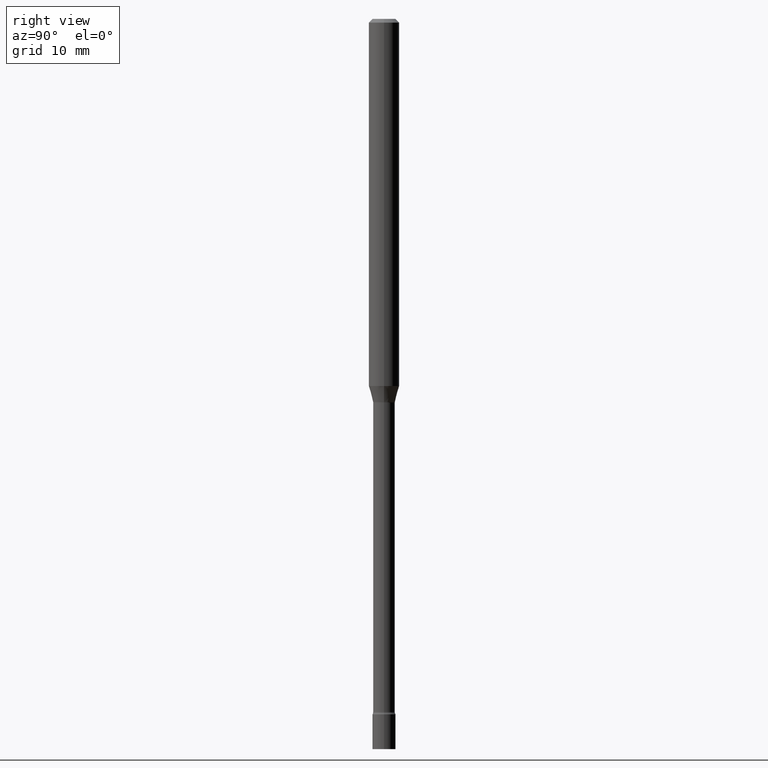
[diagram: clean part render]
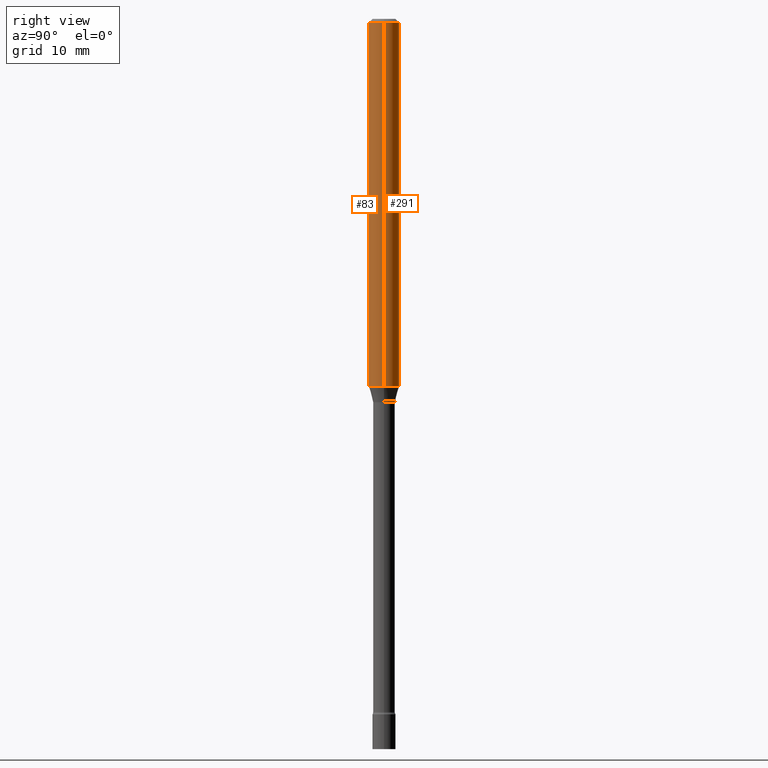
[diagram: same view with one multi-face feature highlighted, each face labeled with its STEP entity id]
A machine part, right view. The highlighted faces form ONE feature: a constant-radius fillet chain: 2 tangent blend faces with common blend radius 1.5875 mm. The faces share edges in the B-rep.
Their STEP definitions:
[1] entity #291 (Cylinder):
#24 = ORIENTED_EDGE ( 'NONE', *, *, #156, .T. ) ;
#30 = AXIS2_PLACEMENT_3D ( 'NONE', #58, #46, #365 ) ;
#44 = CARTESIAN_POINT ( 'NONE',  ( -0.06250000000000000000, -4.822401513186087072E-15, -1.508382893084896148 ) ) ;
#46 = DIRECTION ( 'NONE',  ( -2.445468806185136597E-29, 3.491481338843145583E-15, 1.000000000000000000 ) ) ;
#47 = VERTEX_POINT ( 'NONE', #165 ) ;
#58 = CARTESIAN_POINT ( 'NONE',  ( 3.688703312822403252E-29, -5.266490723036150477E-15, -1.508382893084896148 ) ) ;
#73 = CARTESIAN_POINT ( 'NONE',  ( 3.668203209277712094E-31, -5.237222008264728876E-17, -0.01500000000000003067 ) ) ;
#94 = EDGE_LOOP ( 'NONE', ( #351, #24, #114, #393 ) ) ;
#112 = VERTEX_POINT ( 'NONE', #44 ) ;
#114 = ORIENTED_EDGE ( 'NONE', *, *, #406, .F. ) ;
#145 = CARTESIAN_POINT ( 'NONE',  ( 0.06250000000000000000, -4.888073874380389458E-16, -0.01500000000000003067 ) ) ;
#156 = EDGE_CURVE ( 'NONE', #112, #299, #448, .T. ) ;
#165 = CARTESIAN_POINT ( 'NONE',  ( 0.06250000000000000000, -5.702925890391542147E-15, -1.508382893084896148 ) ) ;
#168 = FACE_OUTER_BOUND ( 'NONE', #94, .T. ) ;
#199 = EDGE_CURVE ( 'NONE', #47, #112, #349, .T. ) ;
#209 = EDGE_CURVE ( 'NONE', #47, #408, #456, .T. ) ;
#218 = DIRECTION ( 'NONE',  ( -2.445468806185136597E-29, 3.491481338843145583E-15, 1.000000000000000000 ) ) ;
#232 = VECTOR ( 'NONE', #411, 39.37007874015748143 ) ;
#290 = CARTESIAN_POINT ( 'NONE',  ( -0.06250000000000000000, 4.440892098500626162E-16, -3.074334431409316114E-30 ) ) ;
#291 = ADVANCED_FACE ( 'NONE', ( #168 ), #341, .T. ) ;
#299 = VERTEX_POINT ( 'NONE', #369 ) ;
#303 = DIRECTION ( 'NONE',  ( 1.000000000000000000, -6.982962677686266711E-15, 0.000000000000000000 ) ) ;
#325 = CARTESIAN_POINT ( 'NONE',  ( 0.000000000000000000, 0.000000000000000000, 0.000000000000000000 ) ) ;
#326 = CARTESIAN_POINT ( 'NONE',  ( 0.06250000000000000000, -4.364351673553916694E-16, 3.047610484872459871E-30 ) ) ;
#336 = DIRECTION ( 'NONE',  ( -2.445468806185136877E-29, 3.491481338843145188E-15, 1.000000000000000000 ) ) ;
#341 = CYLINDRICAL_SURFACE ( 'NONE', #507, 0.06250000000000000000 ) ;
#349 = CIRCLE ( 'NONE', #30, 0.06250000000000000000 ) ;
#351 = ORIENTED_EDGE ( 'NONE', *, *, #199, .T. ) ;
#365 = DIRECTION ( 'NONE',  ( 1.000000000000000000, -6.982962677686262766E-15, 0.000000000000000000 ) ) ;
#369 = CARTESIAN_POINT ( 'NONE',  ( -0.06250000000000000000, -2.215342261709336359E-15, -0.01500000000000003067 ) ) ;
#393 = ORIENTED_EDGE ( 'NONE', *, *, #209, .F. ) ;
#395 = VECTOR ( 'NONE', #336, 39.37007874015748143 ) ;
#406 = EDGE_CURVE ( 'NONE', #408, #299, #420, .T. ) ;
#408 = VERTEX_POINT ( 'NONE', #145 ) ;
#411 = DIRECTION ( 'NONE',  ( -2.445468806185136877E-29, 3.491481338843145188E-15, 1.000000000000000000 ) ) ;
#420 = CIRCLE ( 'NONE', #496, 0.06250000000000000000 ) ;
#448 = LINE ( 'NONE', #290, #232 ) ;
#456 = LINE ( 'NONE', #326, #395 ) ;
#487 = DIRECTION ( 'NONE',  ( -2.445468806185136597E-29, 3.491481338843145583E-15, 1.000000000000000000 ) ) ;
#491 = DIRECTION ( 'NONE',  ( 1.000000000000000000, -6.982962677686266711E-15, 4.876176775795935793E-29 ) ) ;
#496 = AXIS2_PLACEMENT_3D ( 'NONE', #73, #218, #303 ) ;
#507 = AXIS2_PLACEMENT_3D ( 'NONE', #325, #487, #491 ) ;
[2] entity #83 (Cylinder):
#1 = DIRECTION ( 'NONE',  ( 1.000000000000000000, -6.982962677686266711E-15, 4.876176775795935793E-29 ) ) ;
#5 = DIRECTION ( 'NONE',  ( -2.445468806185136597E-29, 3.491481338843145583E-15, 1.000000000000000000 ) ) ;
#34 = CARTESIAN_POINT ( 'NONE',  ( 3.688703312822403252E-29, -5.266490723036150477E-15, -1.508382893084896148 ) ) ;
#44 = CARTESIAN_POINT ( 'NONE',  ( -0.06250000000000000000, -4.822401513186087072E-15, -1.508382893084896148 ) ) ;
#47 = VERTEX_POINT ( 'NONE', #165 ) ;
#59 = ORIENTED_EDGE ( 'NONE', *, *, #447, .T. ) ;
#61 = AXIS2_PLACEMENT_3D ( 'NONE', #34, #229, #392 ) ;
#83 = ADVANCED_FACE ( 'NONE', ( #243 ), #234, .T. ) ;
#112 = VERTEX_POINT ( 'NONE', #44 ) ;
#145 = CARTESIAN_POINT ( 'NONE',  ( 0.06250000000000000000, -4.888073874380389458E-16, -0.01500000000000003067 ) ) ;
#156 = EDGE_CURVE ( 'NONE', #112, #299, #448, .T. ) ;
#165 = CARTESIAN_POINT ( 'NONE',  ( 0.06250000000000000000, -5.702925890391542147E-15, -1.508382893084896148 ) ) ;
#175 = AXIS2_PLACEMENT_3D ( 'NONE', #264, #387, #428 ) ;
#209 = EDGE_CURVE ( 'NONE', #47, #408, #456, .T. ) ;
#229 = DIRECTION ( 'NONE',  ( -2.445468806185136597E-29, 3.491481338843145583E-15, 1.000000000000000000 ) ) ;
#232 = VECTOR ( 'NONE', #411, 39.37007874015748143 ) ;
#234 = CYLINDRICAL_SURFACE ( 'NONE', #310, 0.06250000000000000000 ) ;
#243 = FACE_OUTER_BOUND ( 'NONE', #348, .T. ) ;
#259 = ORIENTED_EDGE ( 'NONE', *, *, #431, .F. ) ;
#264 = CARTESIAN_POINT ( 'NONE',  ( 3.668203209277712094E-31, -5.237222008264728876E-17, -0.01500000000000003067 ) ) ;
#290 = CARTESIAN_POINT ( 'NONE',  ( -0.06250000000000000000, 4.440892098500626162E-16, -3.074334431409316114E-30 ) ) ;
#299 = VERTEX_POINT ( 'NONE', #369 ) ;
#310 = AXIS2_PLACEMENT_3D ( 'NONE', #358, #5, #1 ) ;
#326 = CARTESIAN_POINT ( 'NONE',  ( 0.06250000000000000000, -4.364351673553916694E-16, 3.047610484872459871E-30 ) ) ;
#336 = DIRECTION ( 'NONE',  ( -2.445468806185136877E-29, 3.491481338843145188E-15, 1.000000000000000000 ) ) ;
#348 = EDGE_LOOP ( 'NONE', ( #398, #59, #514, #259 ) ) ;
#358 = CARTESIAN_POINT ( 'NONE',  ( 0.000000000000000000, 0.000000000000000000, 0.000000000000000000 ) ) ;
#369 = CARTESIAN_POINT ( 'NONE',  ( -0.06250000000000000000, -2.215342261709336359E-15, -0.01500000000000003067 ) ) ;
#387 = DIRECTION ( 'NONE',  ( -2.445468806185136597E-29, 3.491481338843145583E-15, 1.000000000000000000 ) ) ;
#392 = DIRECTION ( 'NONE',  ( 1.000000000000000000, -6.982962677686262766E-15, 0.000000000000000000 ) ) ;
#395 = VECTOR ( 'NONE', #336, 39.37007874015748143 ) ;
#398 = ORIENTED_EDGE ( 'NONE', *, *, #156, .F. ) ;
#402 = CIRCLE ( 'NONE', #175, 0.06250000000000000000 ) ;
#408 = VERTEX_POINT ( 'NONE', #145 ) ;
#411 = DIRECTION ( 'NONE',  ( -2.445468806185136877E-29, 3.491481338843145188E-15, 1.000000000000000000 ) ) ;
#428 = DIRECTION ( 'NONE',  ( 1.000000000000000000, -6.982962677686266711E-15, 0.000000000000000000 ) ) ;
#431 = EDGE_CURVE ( 'NONE', #299, #408, #402, .T. ) ;
#447 = EDGE_CURVE ( 'NONE', #112, #47, #474, .T. ) ;
#448 = LINE ( 'NONE', #290, #232 ) ;
#456 = LINE ( 'NONE', #326, #395 ) ;
#474 = CIRCLE ( 'NONE', #61, 0.06250000000000000000 ) ;
#514 = ORIENTED_EDGE ( 'NONE', *, *, #209, .T. ) ;